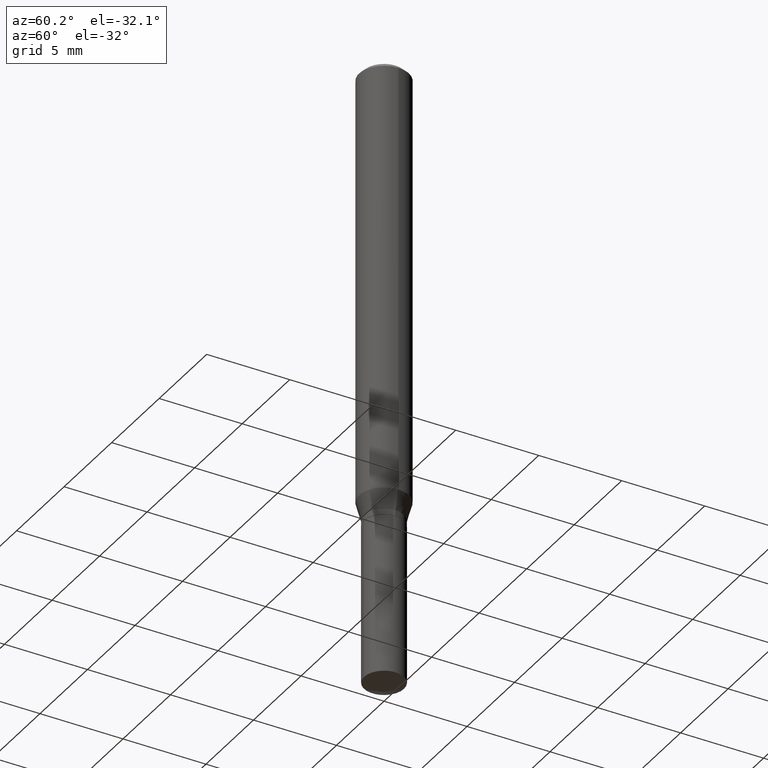
[diagram: clean part render]
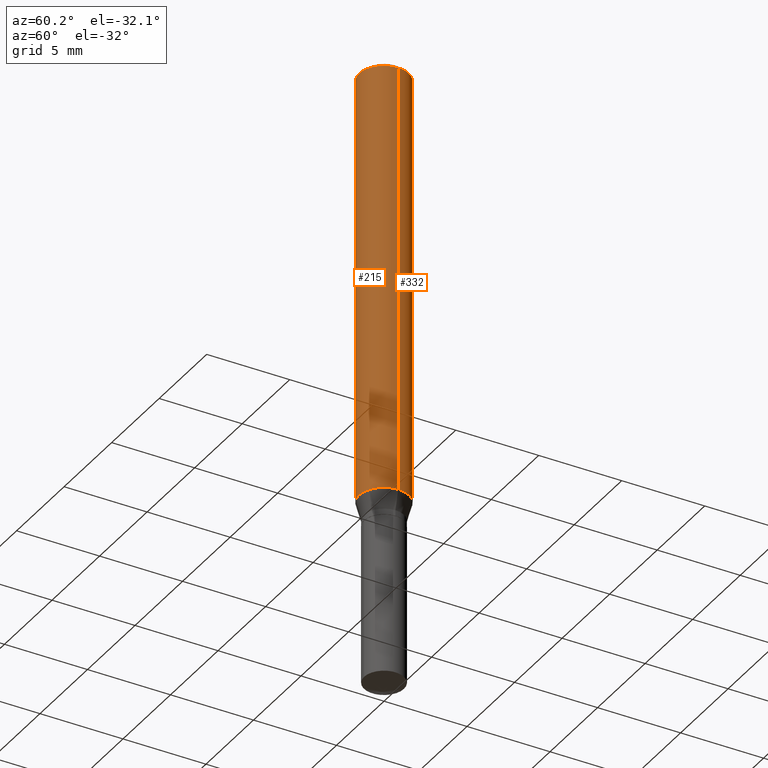
[diagram: same view with one multi-face feature highlighted, each face labeled with its STEP entity id]
A machine part, auxiliary view. The highlighted faces form ONE feature: a constant-radius fillet chain: 2 tangent blend faces with common blend radius 1.4999 mm. The faces share edges in the B-rep.
Their STEP definitions:
[1] entity #215 (Cylinder):
#39 = EDGE_CURVE ( 'NONE', #422, #184, #161, .T. ) ;
#64 = VERTEX_POINT ( 'NONE', #453 ) ;
#76 = ORIENTED_EDGE ( 'NONE', *, *, #120, .T. ) ;
#101 = VECTOR ( 'NONE', #476, 39.37007874015748143 ) ;
#103 = CARTESIAN_POINT ( 'NONE',  ( 2.888098660104664204E-31, -4.123439461173780263E-17, -0.01181000000000007218 ) ) ;
#104 = EDGE_CURVE ( 'NONE', #422, #64, #347, .T. ) ;
#120 = EDGE_CURVE ( 'NONE', #64, #209, #122, .T. ) ;
#122 = LINE ( 'NONE', #290, #126 ) ;
#126 = VECTOR ( 'NONE', #214, 39.37007874015748143 ) ;
#130 = FACE_OUTER_BOUND ( 'NONE', #201, .T. ) ;
#133 = DIRECTION ( 'NONE',  ( 1.000000000000000000, -6.982962677686265133E-15, 0.000000000000000000 ) ) ;
#135 = CARTESIAN_POINT ( 'NONE',  ( 0.000000000000000000, 0.000000000000000000, 0.000000000000000000 ) ) ;
#147 = CARTESIAN_POINT ( 'NONE',  ( -0.05905000000000013016, -3.198513253033061503E-15, -1.036261800470686723 ) ) ;
#161 = LINE ( 'NONE', #301, #101 ) ;
#164 = ORIENTED_EDGE ( 'NONE', *, *, #104, .T. ) ;
#170 = CARTESIAN_POINT ( 'NONE',  ( 0.05904999999999999832, -4.535783407291118600E-16, -0.01181000000000007218 ) ) ;
#184 = VERTEX_POINT ( 'NONE', #421 ) ;
#190 = DIRECTION ( 'NONE',  ( 1.000000000000000000, -6.982962677686266711E-15, 0.000000000000000000 ) ) ;
#191 = AXIS2_PLACEMENT_3D ( 'NONE', #135, #240, #253 ) ;
#201 = EDGE_LOOP ( 'NONE', ( #391, #164, #76, #414 ) ) ;
#209 = VERTEX_POINT ( 'NONE', #170 ) ;
#214 = DIRECTION ( 'NONE',  ( -2.445468806185136877E-29, 3.491481338843145188E-15, 1.000000000000000000 ) ) ;
#215 = ADVANCED_FACE ( 'NONE', ( #130 ), #427, .T. ) ;
#240 = DIRECTION ( 'NONE',  ( -2.445468806185136597E-29, 3.491481338843145583E-15, 1.000000000000000000 ) ) ;
#253 = DIRECTION ( 'NONE',  ( 1.000000000000000000, -6.982962677686266711E-15, 4.876176775795936353E-29 ) ) ;
#290 = CARTESIAN_POINT ( 'NONE',  ( 0.05905000000000006771, -4.123439461173745257E-16, 2.879382386107503723E-30 ) ) ;
#293 = CARTESIAN_POINT ( 'NONE',  ( 2.534145908092310761E-29, -3.618088738499401785E-15, -1.036261800470686723 ) ) ;
#301 = CARTESIAN_POINT ( 'NONE',  ( -0.05905000000000006771, 4.195754854663396409E-16, -2.904631170795525045E-30 ) ) ;
#347 = CIRCLE ( 'NONE', #446, 0.05905000000000013016 ) ;
#354 = EDGE_CURVE ( 'NONE', #184, #209, #370, .T. ) ;
#370 = CIRCLE ( 'NONE', #432, 0.05904999999999999832 ) ;
#391 = ORIENTED_EDGE ( 'NONE', *, *, #39, .F. ) ;
#414 = ORIENTED_EDGE ( 'NONE', *, *, #354, .F. ) ;
#421 = CARTESIAN_POINT ( 'NONE',  ( -0.05904999999999999832, -1.410086081089229475E-15, -0.01181000000000007218 ) ) ;
#422 = VERTEX_POINT ( 'NONE', #147 ) ;
#425 = DIRECTION ( 'NONE',  ( -2.445468806185136597E-29, 3.491481338843145583E-15, 1.000000000000000000 ) ) ;
#427 = CYLINDRICAL_SURFACE ( 'NONE', #191, 0.05905000000000006771 ) ;
#432 = AXIS2_PLACEMENT_3D ( 'NONE', #103, #452, #190 ) ;
#446 = AXIS2_PLACEMENT_3D ( 'NONE', #293, #425, #133 ) ;
#452 = DIRECTION ( 'NONE',  ( -2.445468806185136597E-29, 3.491481338843145583E-15, 1.000000000000000000 ) ) ;
#453 = CARTESIAN_POINT ( 'NONE',  ( 0.05905000000000013016, -4.030432684616776705E-15, -1.036261800470686723 ) ) ;
#476 = DIRECTION ( 'NONE',  ( -2.445468806185136877E-29, 3.491481338843145188E-15, 1.000000000000000000 ) ) ;
[2] entity #332 (Cylinder):
#7 = CIRCLE ( 'NONE', #475, 0.05905000000000013016 ) ;
#11 = CARTESIAN_POINT ( 'NONE',  ( 2.534145908092310761E-29, -3.618088738499401785E-15, -1.036261800470686723 ) ) ;
#15 = EDGE_CURVE ( 'NONE', #209, #184, #30, .T. ) ;
#30 = CIRCLE ( 'NONE', #317, 0.05904999999999999832 ) ;
#39 = EDGE_CURVE ( 'NONE', #422, #184, #161, .T. ) ;
#50 = ORIENTED_EDGE ( 'NONE', *, *, #39, .T. ) ;
#62 = CYLINDRICAL_SURFACE ( 'NONE', #250, 0.05905000000000006771 ) ;
#64 = VERTEX_POINT ( 'NONE', #453 ) ;
#67 = ORIENTED_EDGE ( 'NONE', *, *, #120, .F. ) ;
#101 = VECTOR ( 'NONE', #476, 39.37007874015748143 ) ;
#120 = EDGE_CURVE ( 'NONE', #64, #209, #122, .T. ) ;
#122 = LINE ( 'NONE', #290, #126 ) ;
#126 = VECTOR ( 'NONE', #214, 39.37007874015748143 ) ;
#141 = DIRECTION ( 'NONE',  ( 1.000000000000000000, -6.982962677686266711E-15, 4.876176775795936353E-29 ) ) ;
#147 = CARTESIAN_POINT ( 'NONE',  ( -0.05905000000000013016, -3.198513253033061503E-15, -1.036261800470686723 ) ) ;
#161 = LINE ( 'NONE', #301, #101 ) ;
#170 = CARTESIAN_POINT ( 'NONE',  ( 0.05904999999999999832, -4.535783407291118600E-16, -0.01181000000000007218 ) ) ;
#184 = VERTEX_POINT ( 'NONE', #421 ) ;
#187 = EDGE_CURVE ( 'NONE', #64, #422, #7, .T. ) ;
#205 = ORIENTED_EDGE ( 'NONE', *, *, #15, .F. ) ;
#209 = VERTEX_POINT ( 'NONE', #170 ) ;
#214 = DIRECTION ( 'NONE',  ( -2.445468806185136877E-29, 3.491481338843145188E-15, 1.000000000000000000 ) ) ;
#223 = CARTESIAN_POINT ( 'NONE',  ( 0.000000000000000000, 0.000000000000000000, 0.000000000000000000 ) ) ;
#237 = CARTESIAN_POINT ( 'NONE',  ( 2.888098660104664204E-31, -4.123439461173780263E-17, -0.01181000000000007218 ) ) ;
#250 = AXIS2_PLACEMENT_3D ( 'NONE', #223, #474, #141 ) ;
#256 = FACE_OUTER_BOUND ( 'NONE', #268, .T. ) ;
#268 = EDGE_LOOP ( 'NONE', ( #459, #50, #205, #67 ) ) ;
#290 = CARTESIAN_POINT ( 'NONE',  ( 0.05905000000000006771, -4.123439461173745257E-16, 2.879382386107503723E-30 ) ) ;
#301 = CARTESIAN_POINT ( 'NONE',  ( -0.05905000000000006771, 4.195754854663396409E-16, -2.904631170795525045E-30 ) ) ;
#317 = AXIS2_PLACEMENT_3D ( 'NONE', #237, #485, #477 ) ;
#332 = ADVANCED_FACE ( 'NONE', ( #256 ), #62, .T. ) ;
#385 = DIRECTION ( 'NONE',  ( 1.000000000000000000, -6.982962677686265133E-15, 0.000000000000000000 ) ) ;
#393 = DIRECTION ( 'NONE',  ( -2.445468806185136597E-29, 3.491481338843145583E-15, 1.000000000000000000 ) ) ;
#421 = CARTESIAN_POINT ( 'NONE',  ( -0.05904999999999999832, -1.410086081089229475E-15, -0.01181000000000007218 ) ) ;
#422 = VERTEX_POINT ( 'NONE', #147 ) ;
#453 = CARTESIAN_POINT ( 'NONE',  ( 0.05905000000000013016, -4.030432684616776705E-15, -1.036261800470686723 ) ) ;
#459 = ORIENTED_EDGE ( 'NONE', *, *, #187, .T. ) ;
#474 = DIRECTION ( 'NONE',  ( -2.445468806185136597E-29, 3.491481338843145583E-15, 1.000000000000000000 ) ) ;
#475 = AXIS2_PLACEMENT_3D ( 'NONE', #11, #393, #385 ) ;
#476 = DIRECTION ( 'NONE',  ( -2.445468806185136877E-29, 3.491481338843145188E-15, 1.000000000000000000 ) ) ;
#477 = DIRECTION ( 'NONE',  ( 1.000000000000000000, -6.982962677686266711E-15, 0.000000000000000000 ) ) ;
#485 = DIRECTION ( 'NONE',  ( -2.445468806185136597E-29, 3.491481338843145583E-15, 1.000000000000000000 ) ) ;